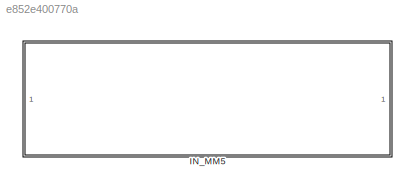
MODEL slx_e852e400770a
KIND library
CONFIG AbsTol = auto
CONFIG EnableMultiTasking = off
CONFIG FixedStep = auto
CONFIG MaxStep = auto
CONFIG MinStep = auto
CONFIG RelTol = 1e-3
CONFIG SampleTimeConstraint = Unconstrained
CONFIG SolverName = VariableStepAuto
CONFIG StartTime = 0.0
CONFIG StopTime = 10.0
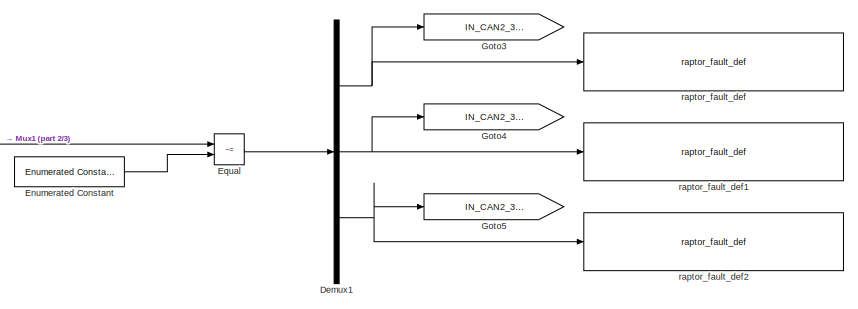
[diagram: IN_MM5 - part 1/3, top right region]
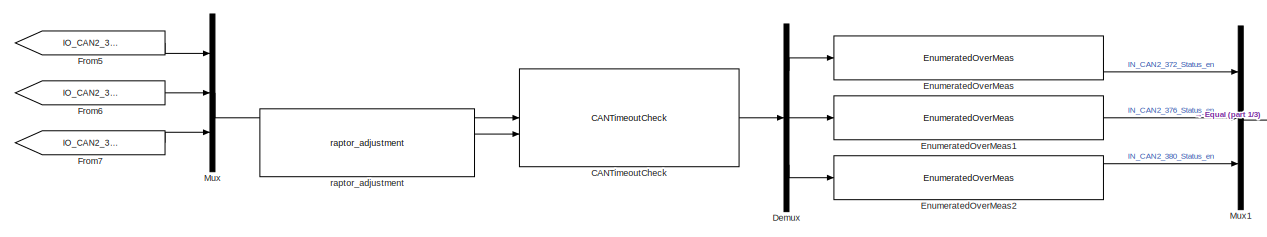
[diagram: IN_MM5 - part 2/3, top left region]
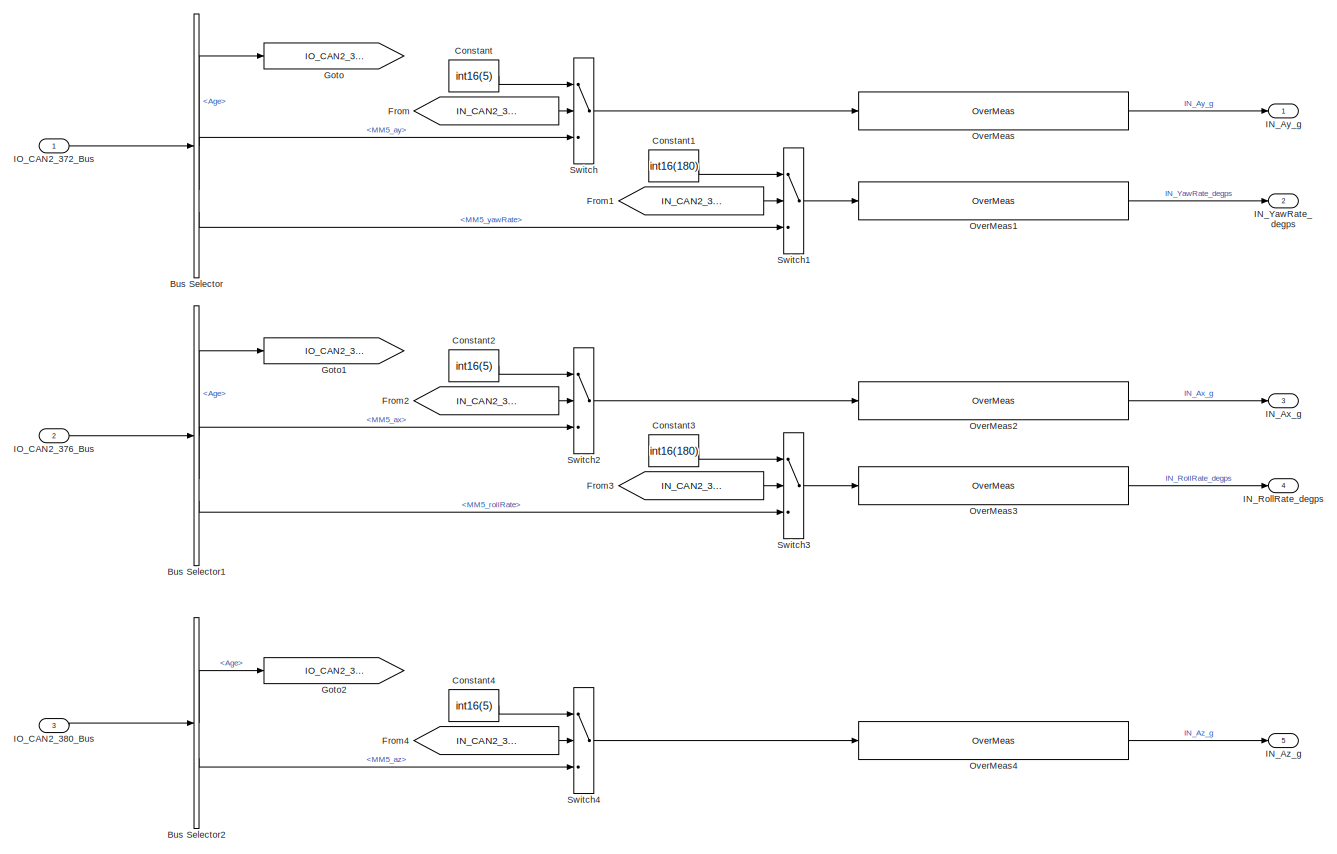
[diagram: IN_MM5 - part 3/3, central region]
BLOCK [SubSystem] IN_MM5
BLOCK [BusSelector] IN_MM5/Bus Selector
  OutputSignals = Age,MM5_ay,MM5_yawRate
BLOCK [BusSelector] IN_MM5/Bus Selector1
  OutputSignals = Age,MM5_ax,MM5_rollRate
BLOCK [BusSelector] IN_MM5/Bus Selector2
  OutputSignals = Age,MM5_az
BLOCK [Reference] IN_MM5/CANTimeoutCheck  REF=Utilities/CANTimeoutCheck
  SourceBlock = Utilities/CANTimeoutCheck
BLOCK [Constant] IN_MM5/Constant
  Value = int16(5)
BLOCK [Constant] IN_MM5/Constant1
  Value = int16(180)
BLOCK [Constant] IN_MM5/Constant2
  Value = int16(5)
BLOCK [Constant] IN_MM5/Constant3
  Value = int16(180)
BLOCK [Constant] IN_MM5/Constant4
  Value = int16(5)
BLOCK [Demux] IN_MM5/Demux
  Outputs = 3
BLOCK [Demux] IN_MM5/Demux1
  Outputs = 3
BLOCK [Reference] IN_MM5/Enumerated Constant  REF=simulink/Sources/Enumerated
Constant
  SourceBlock = simulink/Sources/Enumerated\nConstant
  SourceType = Enumerated Constant
BLOCK [Reference] IN_MM5/EnumeratedOverMeas  REF=Utilities/EnumeratedOverMeas
  SourceBlock = Utilities/EnumeratedOverMeas
BLOCK [Reference] IN_MM5/EnumeratedOverMeas1  REF=Utilities/EnumeratedOverMeas
  SourceBlock = Utilities/EnumeratedOverMeas
BLOCK [Reference] IN_MM5/EnumeratedOverMeas2  REF=Utilities/EnumeratedOverMeas
  SourceBlock = Utilities/EnumeratedOverMeas
BLOCK [RelationalOperator] IN_MM5/Equal
  InputSameDT = off
  Operator = ~=
  OutDataTypeStr = boolean
  RndMeth = Simplest
BLOCK [From] IN_MM5/From
  GotoTag = IN_CAN2_372_Fault
BLOCK [From] IN_MM5/From1
  GotoTag = IN_CAN2_372_Fault
BLOCK [From] IN_MM5/From2
  GotoTag = IN_CAN2_376_Fault
BLOCK [From] IN_MM5/From3
  GotoTag = IN_CAN2_376_Fault
BLOCK [From] IN_MM5/From4
  GotoTag = IN_CAN2_380_Fault
BLOCK [From] IN_MM5/From5
  GotoTag = IO_CAN2_372_Age
BLOCK [From] IN_MM5/From6
  GotoTag = IO_CAN2_376_Age
BLOCK [From] IN_MM5/From7
  GotoTag = IO_CAN2_380_Age
BLOCK [Goto] IN_MM5/Goto
  GotoTag = IO_CAN2_372_Age
BLOCK [Goto] IN_MM5/Goto1
  GotoTag = IO_CAN2_376_Age
BLOCK [Goto] IN_MM5/Goto2
  GotoTag = IO_CAN2_380_Age
BLOCK [Goto] IN_MM5/Goto3
  GotoTag = IN_CAN2_372_Fault
BLOCK [Goto] IN_MM5/Goto4
  GotoTag = IN_CAN2_376_Fault
BLOCK [Goto] IN_MM5/Goto5
  GotoTag = IN_CAN2_380_Fault
BLOCK [Outport] IN_MM5/IN_Ax_g
  Port = 3
BLOCK [Outport] IN_MM5/IN_Ay_g
BLOCK [Outport] IN_MM5/IN_Az_g
  Port = 5
BLOCK [Outport] IN_MM5/IN_RollRate_degps
  Port = 4
BLOCK [Outport] IN_MM5/IN_YawRate_degps
  Port = 2
BLOCK [Inport] IN_MM5/IO_CAN2_372_Bus
BLOCK [Inport] IN_MM5/IO_CAN2_376_Bus
  Port = 2
BLOCK [Inport] IN_MM5/IO_CAN2_380_Bus
  Port = 3
BLOCK [Mux] IN_MM5/Mux
  DisplayOption = bar
  Inputs = 3
BLOCK [Mux] IN_MM5/Mux1
  DisplayOption = bar
  Inputs = 3
BLOCK [Reference] IN_MM5/OverMeas  REF=Utilities/OverMeas
  SourceBlock = Utilities/OverMeas
BLOCK [Reference] IN_MM5/OverMeas1  REF=Utilities/OverMeas
  SourceBlock = Utilities/OverMeas
BLOCK [Reference] IN_MM5/OverMeas2  REF=Utilities/OverMeas
  SourceBlock = Utilities/OverMeas
BLOCK [Reference] IN_MM5/OverMeas3  REF=Utilities/OverMeas
  SourceBlock = Utilities/OverMeas
BLOCK [Reference] IN_MM5/OverMeas4  REF=Utilities/OverMeas
  SourceBlock = Utilities/OverMeas
BLOCK [Switch] IN_MM5/Switch
  Criteria = u2 ~= 0
  InputSameDT = off
  SaturateOnIntegerOverflow = off
BLOCK [Switch] IN_MM5/Switch1
  Criteria = u2 ~= 0
  InputSameDT = off
  SaturateOnIntegerOverflow = off
BLOCK [Switch] IN_MM5/Switch2
  Criteria = u2 ~= 0
  InputSameDT = off
  SaturateOnIntegerOverflow = off
BLOCK [Switch] IN_MM5/Switch3
  Criteria = u2 ~= 0
  InputSameDT = off
  SaturateOnIntegerOverflow = off
BLOCK [Switch] IN_MM5/Switch4
  Criteria = u2 ~= 0
  InputSameDT = off
  SaturateOnIntegerOverflow = off
BLOCK [Reference] IN_MM5/raptor_adjustment  REF=Raptor_lib/Data Storage/raptor_adjustment
  SourceBlock = Raptor_lib/Data Storage/raptor_adjustment
  SourceProductName = Raptor
  SourceType = Adjustment
BLOCK [Reference] IN_MM5/raptor_fault_def  REF=Raptor_lib/Faults/raptor_fault_def
  SourceBlock = Raptor_lib/Faults/raptor_fault_def
  SourceProductName = Raptor
  SourceType = Fault Definition
BLOCK [Reference] IN_MM5/raptor_fault_def1  REF=Raptor_lib/Faults/raptor_fault_def
  SourceBlock = Raptor_lib/Faults/raptor_fault_def
  SourceProductName = Raptor
  SourceType = Fault Definition
BLOCK [Reference] IN_MM5/raptor_fault_def2  REF=Raptor_lib/Faults/raptor_fault_def
  SourceBlock = Raptor_lib/Faults/raptor_fault_def
  SourceProductName = Raptor
  SourceType = Fault Definition
LINE IN_MM5/Bus Selector1:1 -> IN_MM5/Goto1:1
LINE IN_MM5/Bus Selector1:2 -> IN_MM5/Switch2:3
LINE IN_MM5/Bus Selector1:3 -> IN_MM5/Switch3:3
LINE IN_MM5/Bus Selector2:1 -> IN_MM5/Goto2:1
LINE IN_MM5/Bus Selector2:2 -> IN_MM5/Switch4:3
LINE IN_MM5/Bus Selector:1 -> IN_MM5/Goto:1
LINE IN_MM5/Bus Selector:2 -> IN_MM5/Switch:3
LINE IN_MM5/Bus Selector:3 -> IN_MM5/Switch1:3
LINE IN_MM5/CANTimeoutCheck:1 -> IN_MM5/Demux:1
LINE IN_MM5/Constant1:1 -> IN_MM5/Switch1:1
LINE IN_MM5/Constant2:1 -> IN_MM5/Switch2:1
LINE IN_MM5/Constant3:1 -> IN_MM5/Switch3:1
LINE IN_MM5/Constant4:1 -> IN_MM5/Switch4:1
LINE IN_MM5/Constant:1 -> IN_MM5/Switch:1
NET IN_MM5/Demux1:1 -> IN_MM5/Goto3:1, IN_MM5/raptor_fault_def:1
NET IN_MM5/Demux1:2 -> IN_MM5/Goto4:1, IN_MM5/raptor_fault_def1:1
NET IN_MM5/Demux1:3 -> IN_MM5/Goto5:1, IN_MM5/raptor_fault_def2:1
LINE IN_MM5/Demux:1 -> IN_MM5/EnumeratedOverMeas:1
LINE IN_MM5/Demux:2 -> IN_MM5/EnumeratedOverMeas1:1
LINE IN_MM5/Demux:3 -> IN_MM5/EnumeratedOverMeas2:1
LINE IN_MM5/Enumerated Constant:1 -> IN_MM5/Equal:2
LINE IN_MM5/EnumeratedOverMeas1:1 -> IN_MM5/Mux1:2
LINE IN_MM5/EnumeratedOverMeas2:1 -> IN_MM5/Mux1:3
LINE IN_MM5/EnumeratedOverMeas:1 -> IN_MM5/Mux1:1
LINE IN_MM5/Equal:1 -> IN_MM5/Demux1:1
LINE IN_MM5/From1:1 -> IN_MM5/Switch1:2
LINE IN_MM5/From2:1 -> IN_MM5/Switch2:2
LINE IN_MM5/From3:1 -> IN_MM5/Switch3:2
LINE IN_MM5/From4:1 -> IN_MM5/Switch4:2
LINE IN_MM5/From5:1 -> IN_MM5/Mux:1
LINE IN_MM5/From6:1 -> IN_MM5/Mux:2
LINE IN_MM5/From7:1 -> IN_MM5/Mux:3
LINE IN_MM5/From:1 -> IN_MM5/Switch:2
LINE IN_MM5/IO_CAN2_372_Bus:1 -> IN_MM5/Bus Selector:1
LINE IN_MM5/IO_CAN2_376_Bus:1 -> IN_MM5/Bus Selector1:1
LINE IN_MM5/IO_CAN2_380_Bus:1 -> IN_MM5/Bus Selector2:1
LINE IN_MM5/Mux1:1 -> IN_MM5/Equal:1
LINE IN_MM5/Mux:1 -> IN_MM5/CANTimeoutCheck:1
LINE IN_MM5/OverMeas1:1 -> IN_MM5/IN_YawRate_degps:1
LINE IN_MM5/OverMeas2:1 -> IN_MM5/IN_Ax_g:1
LINE IN_MM5/OverMeas3:1 -> IN_MM5/IN_RollRate_degps:1
LINE IN_MM5/OverMeas4:1 -> IN_MM5/IN_Az_g:1
LINE IN_MM5/OverMeas:1 -> IN_MM5/IN_Ay_g:1
LINE IN_MM5/Switch1:1 -> IN_MM5/OverMeas1:1
LINE IN_MM5/Switch2:1 -> IN_MM5/OverMeas2:1
LINE IN_MM5/Switch3:1 -> IN_MM5/OverMeas3:1
LINE IN_MM5/Switch4:1 -> IN_MM5/OverMeas4:1
LINE IN_MM5/Switch:1 -> IN_MM5/OverMeas:1
LINE IN_MM5/raptor_adjustment:1 -> IN_MM5/CANTimeoutCheck:2
note: NET lines group one-source signal fan-out (src -> all destinations, sorted); 1:1 wires keep LINE
